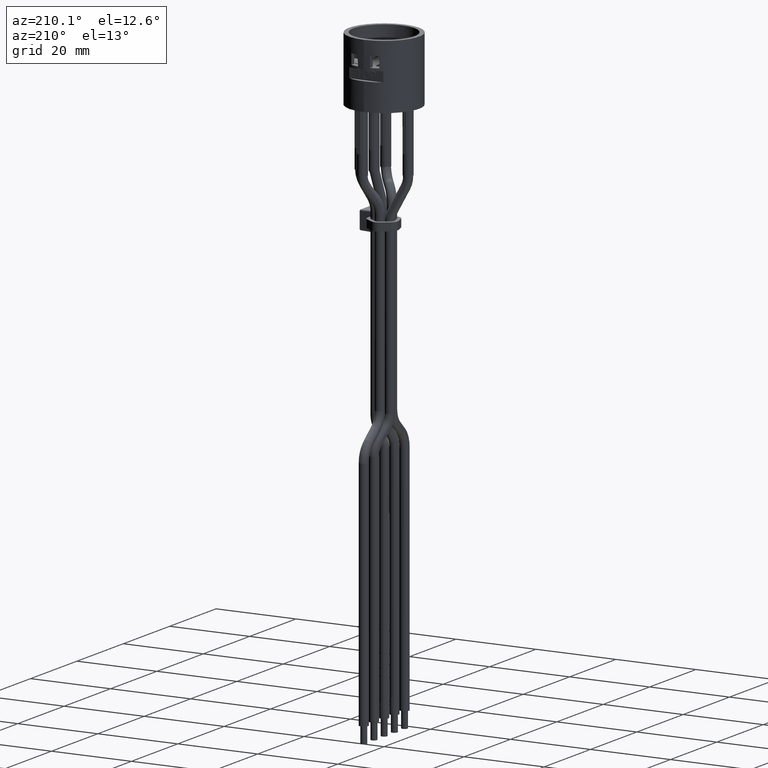
[diagram: clean part render]
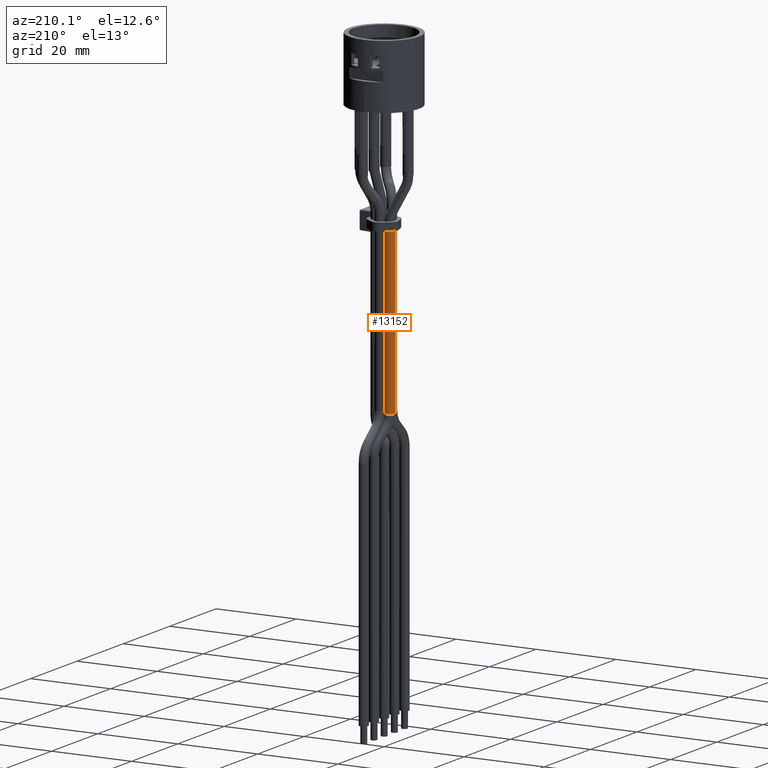
[diagram: same view with one face highlighted and labeled with its STEP entity id]
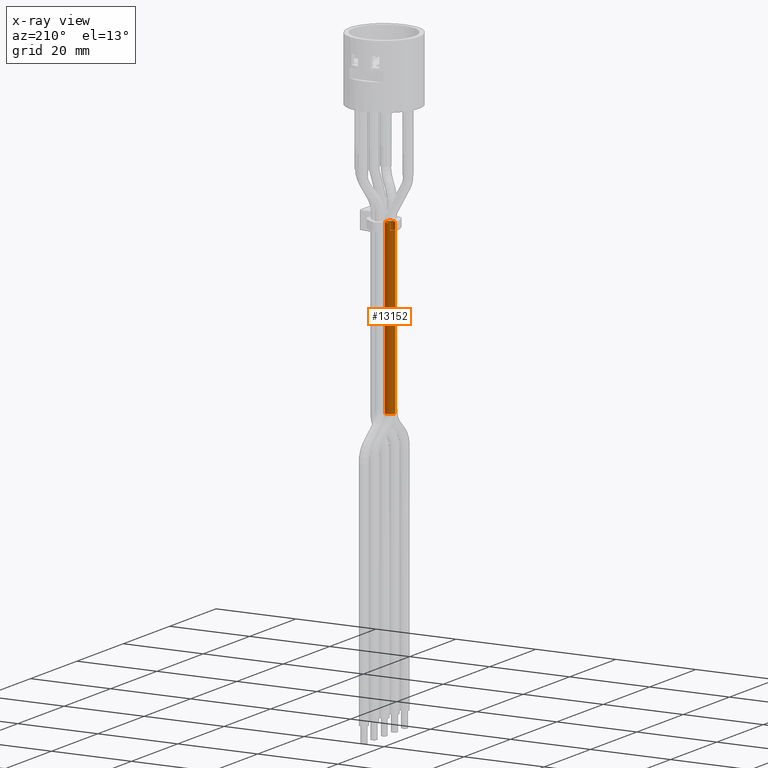
[diagram: x-ray of the same camera — body ghosted, the highlighted face saturated]
A machine part, auxiliary view. The second image highlights one B-rep face of the part: STEP entity #13152.
The next image is the same camera in x-ray: the body ghosted, the highlighted face saturated — about 0% of this face is hidden behind the body in this view.
In plain terms, the highlighted cylindrical surface (bore or boss wall) has radius 1.1 mm, axis along (-0, 0, -1).
Its self-contained STEP definition (entity closure, byte-faithful):
#442=CIRCLE('',#13757,1.1);
#517=CIRCLE('',#13918,1.1);
#518=CIRCLE('',#13919,1.1);
#556=CIRCLE('',#13992,1.1);
#557=CIRCLE('',#13993,1.1);
#708=CYLINDRICAL_SURFACE('',#14005,1.1);
#1322=FACE_OUTER_BOUND('',#2035,.T.);
#2035=EDGE_LOOP('',(#11623,#11624,#11625,#11626,#11627,#11628,#11629,#11630,
#11631));
#3338=LINE('',#21090,#4800);
#3372=LINE('',#21194,#4834);
#3509=LINE('',#22145,#4971);
#4800=VECTOR('',#16429,10.);
#4834=VECTOR('',#16503,10.);
#4971=VECTOR('',#17116,1.1);
#5982=VERTEX_POINT('',#21083);
#5984=VERTEX_POINT('',#21089);
#6002=VERTEX_POINT('',#21129);
#6021=VERTEX_POINT('',#21186);
#6121=VERTEX_POINT('',#21725);
#6172=VERTEX_POINT('',#22120);
#6173=VERTEX_POINT('',#22122);
#7707=EDGE_CURVE('',#5982,#5984,#3338,.T.);
#7727=EDGE_CURVE('',#6002,#5984,#442,.T.);
#7755=EDGE_CURVE('',#6021,#6002,#3372,.T.);
#7935=EDGE_CURVE('',#6121,#6021,#517,.T.);
#7936=EDGE_CURVE('',#5982,#6121,#518,.T.);
#8018=EDGE_CURVE('',#6172,#6173,#556,.T.);
#8019=EDGE_CURVE('',#6173,#6172,#557,.T.);
#8030=EDGE_CURVE('',#6173,#6121,#3509,.T.);
#11623=ORIENTED_EDGE('',*,*,#8019,.F.);
#11624=ORIENTED_EDGE('',*,*,#8030,.T.);
#11625=ORIENTED_EDGE('',*,*,#7935,.T.);
#11626=ORIENTED_EDGE('',*,*,#7755,.T.);
#11627=ORIENTED_EDGE('',*,*,#7727,.T.);
#11628=ORIENTED_EDGE('',*,*,#7707,.F.);
#11629=ORIENTED_EDGE('',*,*,#7936,.T.);
#11630=ORIENTED_EDGE('',*,*,#8030,.F.);
#11631=ORIENTED_EDGE('',*,*,#8018,.F.);
#13152=ADVANCED_FACE('',(#1322),#708,.T.);
#13757=AXIS2_PLACEMENT_3D('',#21130,#16460,#16461);
#13918=AXIS2_PLACEMENT_3D('',#21726,#16902,#16903);
#13919=AXIS2_PLACEMENT_3D('',#21727,#16904,#16905);
#13992=AXIS2_PLACEMENT_3D('',#22123,#17086,#17087);
#13993=AXIS2_PLACEMENT_3D('',#22124,#17088,#17089);
#14005=AXIS2_PLACEMENT_3D('',#22144,#17114,#17115);
#16429=DIRECTION('',(-1.91513471747838E-15,4.96175654301633E-15,-1.));
#16460=DIRECTION('center_axis',(4.89801263142938E-15,1.22323376557195E-14,
-1.));
#16461=DIRECTION('ref_axis',(-4.99672001971652E-15,1.,4.96175654301634E-15));
#16503=DIRECTION('',(-1.91513471747838E-15,4.96175654301633E-15,-1.));
#16902=DIRECTION('center_axis',(-1.69309011255335E-15,5.01726769424759E-15,
-1.));
#16903=DIRECTION('ref_axis',(-4.99672001971652E-15,1.,5.02799143937182E-15));
#16904=DIRECTION('center_axis',(-1.69309011255335E-15,5.01726769424759E-15,
-1.));
#16905=DIRECTION('ref_axis',(-4.99672001971652E-15,1.,5.02799143937182E-15));
#17086=DIRECTION('center_axis',(-1.69309011255335E-15,5.01726769424759E-15,
-1.));
#17087=DIRECTION('ref_axis',(-4.99672001971652E-15,1.,5.02799143937182E-15));
#17088=DIRECTION('center_axis',(-1.69309011255335E-15,5.01726769424759E-15,
-1.));
#17089=DIRECTION('ref_axis',(-4.99672001971652E-15,1.,5.02799143937182E-15));
#17114=DIRECTION('center_axis',(-1.91513471747838E-15,4.96175654301633E-15,
-1.));
#17115=DIRECTION('ref_axis',(-4.99672001971652E-15,1.,4.96175654301634E-15));
#17116=DIRECTION('',(1.91513471747839E-15,-4.96175654301633E-15,1.));
#21083=CARTESIAN_POINT('',(-2.43455002849043,1.47087064338093,-25.3600773513169));
#21089=CARTESIAN_POINT('',(-2.43455002849042,1.47087064338095,-26.9999999999999));
#21090=CARTESIAN_POINT('',(-2.43455002803397,1.47087064371258,-25.3600773513169));
#21129=CARTESIAN_POINT('',(-2.83414841916108,0.24103325541496,-26.9999999999999));
#21130=CARTESIAN_POINT('Origin',(-1.78798625063492,0.580951949424984,-26.9999999999999));
#21186=CARTESIAN_POINT('',(-2.83414841912318,0.241033255298279,-25.3600773513169));
#21194=CARTESIAN_POINT('',(-2.83414841912318,0.241033255298279,-25.3600773513169));
#21725=CARTESIAN_POINT('',(-1.78798625063492,-0.519048050575024,-25.3600773513169));
#21726=CARTESIAN_POINT('Origin',(-1.78798625063492,0.580951949424976,-25.3600773513169));
#21727=CARTESIAN_POINT('Origin',(-1.78798625063492,0.580951949424976,-25.3600773513169));
#22120=CARTESIAN_POINT('',(-1.32619152588899,1.57932343950128,-67.781946034938));
#22122=CARTESIAN_POINT('',(-1.787986250635,-0.519048050574814,-67.781946034938));
#22123=CARTESIAN_POINT('Origin',(-1.787986250635,0.580951949425187,-67.781946034938));
#22124=CARTESIAN_POINT('Origin',(-1.787986250635,0.580951949425187,-67.781946034938));
#22144=CARTESIAN_POINT('Origin',(-1.78798625063492,0.580951949424976,-25.3600773513169));
#22145=CARTESIAN_POINT('',(-1.78798625063492,-0.519048050575024,-25.3600773513169));